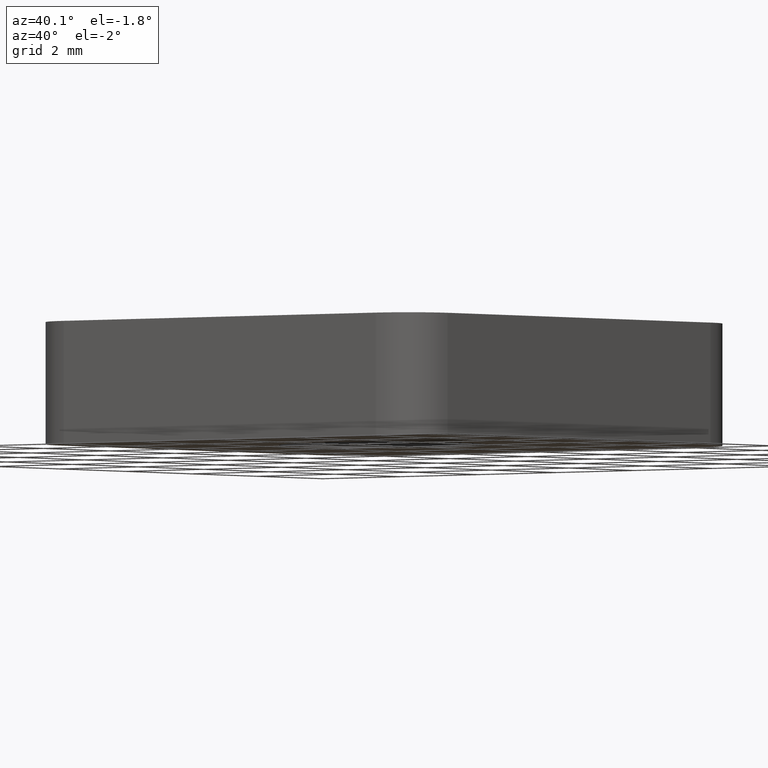
[diagram: clean part render]
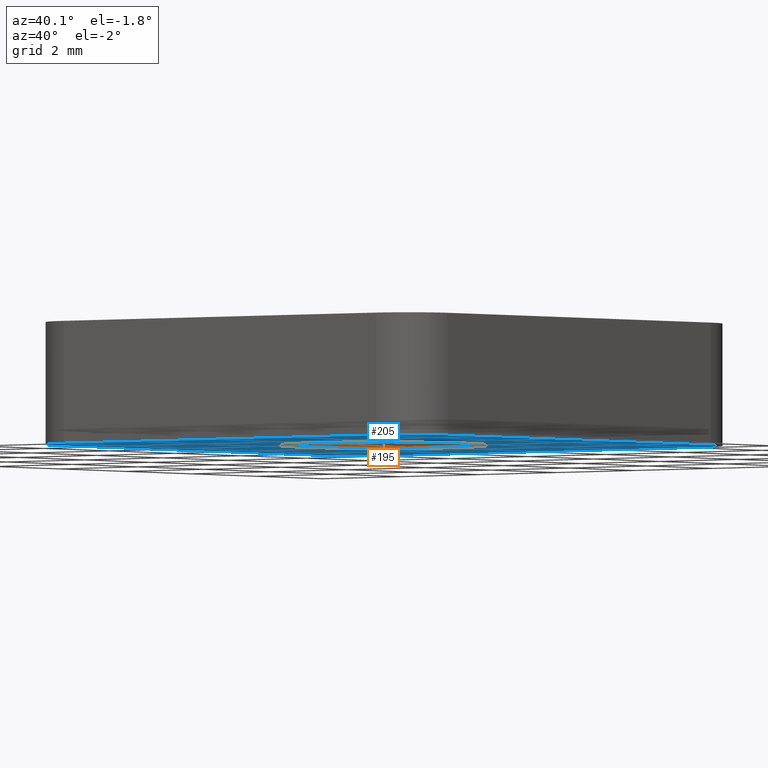
[diagram: same view with the hole feature highlighted: cylindrical wall and planar end face, labeled with their STEP entity ids]
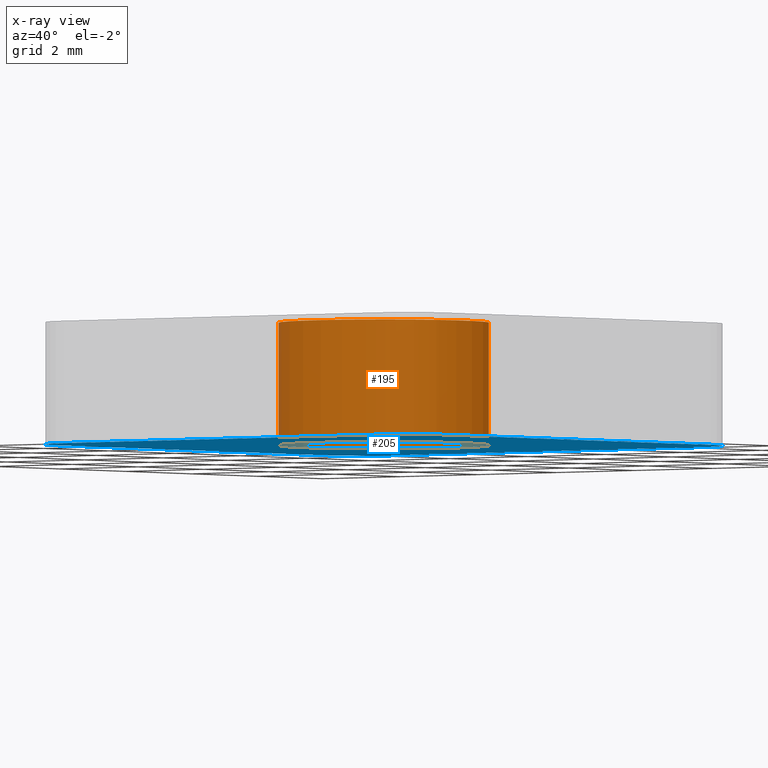
[diagram: x-ray of the same camera — body ghosted, the hole faces saturated]
A machine part, auxiliary view. The highlighted faces form one hole feature of diameter 4.134 mm: the cylindrical wall (entity #195, orange) and its adjacent planar end face (entity #205, blue) — they share a circular edge in the B-rep.
The next image is the same camera in x-ray (body ghosted, the hole faces saturated) — the bore reads through the body.
Wall:
#23=FACE_OUTER_BOUND('',#34,.T.);
#34=EDGE_LOOP('',(#136,#137,#138,#139));
#47=LINE('',#316,#64);
#64=VECTOR('',#256,2.067);
#81=CIRCLE('',#230,2.067);
#82=CIRCLE('',#231,2.067);
#91=VERTEX_POINT('',#313);
#92=VERTEX_POINT('',#315);
#109=EDGE_CURVE('',#91,#91,#81,.T.);
#110=EDGE_CURVE('',#91,#92,#47,.T.);
#111=EDGE_CURVE('',#92,#92,#82,.T.);
#136=ORIENTED_EDGE('',*,*,#109,.F.);
#137=ORIENTED_EDGE('',*,*,#110,.T.);
#138=ORIENTED_EDGE('',*,*,#111,.F.);
#139=ORIENTED_EDGE('',*,*,#110,.F.);
#190=CYLINDRICAL_SURFACE('',#229,2.067);
#195=ADVANCED_FACE('',(#23),#190,.F.);
#229=AXIS2_PLACEMENT_3D('',#312,#252,#253);
#230=AXIS2_PLACEMENT_3D('',#314,#254,#255);
#231=AXIS2_PLACEMENT_3D('',#317,#257,#258);
#252=DIRECTION('center_axis',(0.,0.,1.));
#253=DIRECTION('ref_axis',(1.,1.4432899320127E-14,0.));
#254=DIRECTION('center_axis',(0.,0.,-1.));
#255=DIRECTION('ref_axis',(1.,1.4432899320127E-14,0.));
#256=DIRECTION('',(0.,0.,-1.));
#257=DIRECTION('center_axis',(0.,0.,1.));
#258=DIRECTION('ref_axis',(1.,1.4432899320127E-14,0.));
#312=CARTESIAN_POINT('Origin',(0.,0.,-14.3443368616329));
#313=CARTESIAN_POINT('',(-2.067,-3.00859373880864E-14,0.));
#314=CARTESIAN_POINT('Origin',(0.,0.,0.));
#315=CARTESIAN_POINT('',(-2.067,-3.00859373880864E-14,-2.4));
#316=CARTESIAN_POINT('',(-2.067,-3.00859373880864E-14,-14.3443368616329));
#317=CARTESIAN_POINT('Origin',(0.,0.,-2.4));
End face:
#16=FACE_BOUND('',#46,.T.);
#22=PLANE('',#249);
#33=FACE_OUTER_BOUND('',#45,.T.);
#45=EDGE_LOOP('',(#181,#182,#183,#184,#185,#186,#187,#188));
#46=EDGE_LOOP('',(#189));
#50=LINE('',#329,#67);
#54=LINE('',#341,#71);
#58=LINE('',#353,#75);
#62=LINE('',#364,#79);
#67=VECTOR('',#269,8.);
#71=VECTOR('',#281,7.99999999999989);
#75=VECTOR('',#293,8.);
#79=VECTOR('',#305,7.99999999999989);
#82=CIRCLE('',#231,2.067);
#83=CIRCLE('',#233,1.);
#85=CIRCLE('',#237,1.);
#87=CIRCLE('',#241,1.);
#89=CIRCLE('',#245,1.);
#92=VERTEX_POINT('',#315);
#94=VERTEX_POINT('',#320);
#95=VERTEX_POINT('',#322);
#97=VERTEX_POINT('',#328);
#99=VERTEX_POINT('',#334);
#101=VERTEX_POINT('',#340);
#103=VERTEX_POINT('',#346);
#105=VERTEX_POINT('',#352);
#107=VERTEX_POINT('',#358);
#111=EDGE_CURVE('',#92,#92,#82,.T.);
#113=EDGE_CURVE('',#94,#95,#83,.T.);
#116=EDGE_CURVE('',#95,#97,#50,.T.);
#119=EDGE_CURVE('',#97,#99,#85,.T.);
#122=EDGE_CURVE('',#99,#101,#54,.T.);
#125=EDGE_CURVE('',#101,#103,#87,.T.);
#128=EDGE_CURVE('',#103,#105,#58,.T.);
#131=EDGE_CURVE('',#105,#107,#89,.T.);
#134=EDGE_CURVE('',#107,#94,#62,.T.);
#181=ORIENTED_EDGE('',*,*,#134,.F.);
#182=ORIENTED_EDGE('',*,*,#131,.F.);
#183=ORIENTED_EDGE('',*,*,#128,.F.);
#184=ORIENTED_EDGE('',*,*,#125,.F.);
#185=ORIENTED_EDGE('',*,*,#122,.F.);
#186=ORIENTED_EDGE('',*,*,#119,.F.);
#187=ORIENTED_EDGE('',*,*,#116,.F.);
#188=ORIENTED_EDGE('',*,*,#113,.F.);
#189=ORIENTED_EDGE('',*,*,#111,.T.);
#205=ADVANCED_FACE('',(#33,#16),#22,.F.);
#231=AXIS2_PLACEMENT_3D('',#317,#257,#258);
#233=AXIS2_PLACEMENT_3D('',#323,#262,#263);
#237=AXIS2_PLACEMENT_3D('',#335,#274,#275);
#241=AXIS2_PLACEMENT_3D('',#347,#286,#287);
#245=AXIS2_PLACEMENT_3D('',#359,#298,#299);
#249=AXIS2_PLACEMENT_3D('',#367,#309,#310);
#257=DIRECTION('center_axis',(0.,0.,1.));
#258=DIRECTION('ref_axis',(1.,1.4432899320127E-14,0.));
#262=DIRECTION('center_axis',(0.,0.,1.));
#263=DIRECTION('ref_axis',(1.,0.,0.));
#269=DIRECTION('',(1.,0.,0.));
#274=DIRECTION('center_axis',(0.,0.,1.));
#275=DIRECTION('ref_axis',(1.,0.,0.));
#281=DIRECTION('',(0.,1.,0.));
#286=DIRECTION('center_axis',(0.,0.,1.));
#287=DIRECTION('ref_axis',(1.,0.,0.));
#293=DIRECTION('',(-1.,0.,0.));
#298=DIRECTION('center_axis',(0.,0.,1.));
#299=DIRECTION('ref_axis',(1.,0.,0.));
#305=DIRECTION('',(0.,-1.,0.));
#309=DIRECTION('center_axis',(0.,0.,1.));
#310=DIRECTION('ref_axis',(1.,0.,0.));
#315=CARTESIAN_POINT('',(-2.067,-3.00859373880864E-14,-2.4));
#317=CARTESIAN_POINT('Origin',(0.,0.,-2.4));
#320=CARTESIAN_POINT('',(-5.,-4.,-2.4));
#322=CARTESIAN_POINT('',(-4.,-5.,-2.4));
#323=CARTESIAN_POINT('Origin',(-4.,-4.,-2.4));
#328=CARTESIAN_POINT('',(4.,-4.99999999999988,-2.4));
#329=CARTESIAN_POINT('',(-4.,-5.,-2.4));
#334=CARTESIAN_POINT('',(5.,-3.99999999999989,-2.4));
#335=CARTESIAN_POINT('Origin',(4.,-3.99999999999989,-2.4));
#340=CARTESIAN_POINT('',(5.,4.,-2.4));
#341=CARTESIAN_POINT('',(5.,-3.99999999999989,-2.4));
#346=CARTESIAN_POINT('',(4.,5.,-2.4));
#347=CARTESIAN_POINT('Origin',(4.,4.,-2.4));
#352=CARTESIAN_POINT('',(-4.,4.99999999999988,-2.4));
#353=CARTESIAN_POINT('',(4.,5.,-2.4));
#358=CARTESIAN_POINT('',(-5.,3.99999999999989,-2.4));
#359=CARTESIAN_POINT('Origin',(-4.,3.99999999999989,-2.4));
#364=CARTESIAN_POINT('',(-5.,3.99999999999989,-2.4));
#367=CARTESIAN_POINT('Origin',(-6.00012000264004,-6.00012000261563,-2.4));